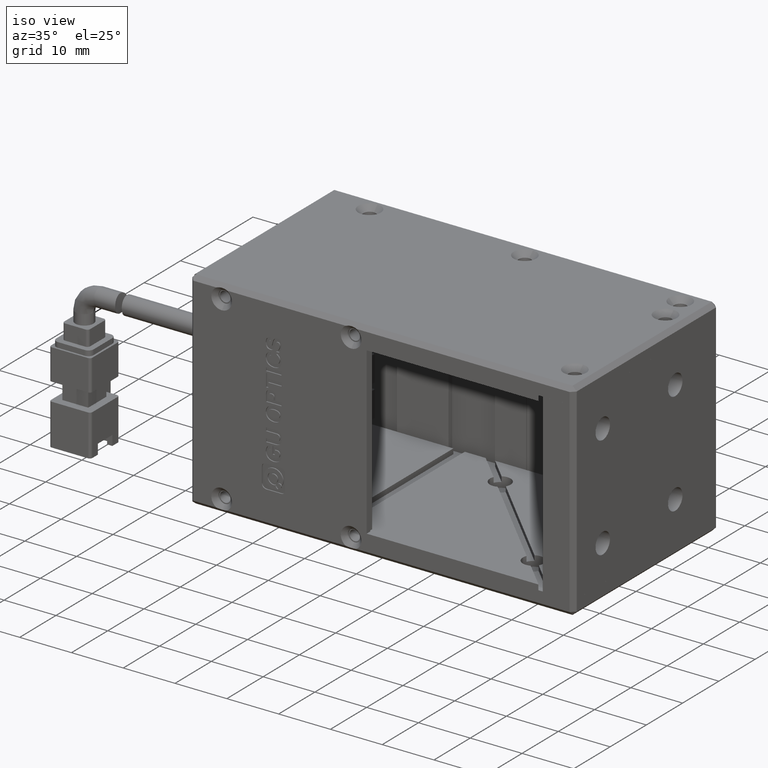
[diagram: clean part render]
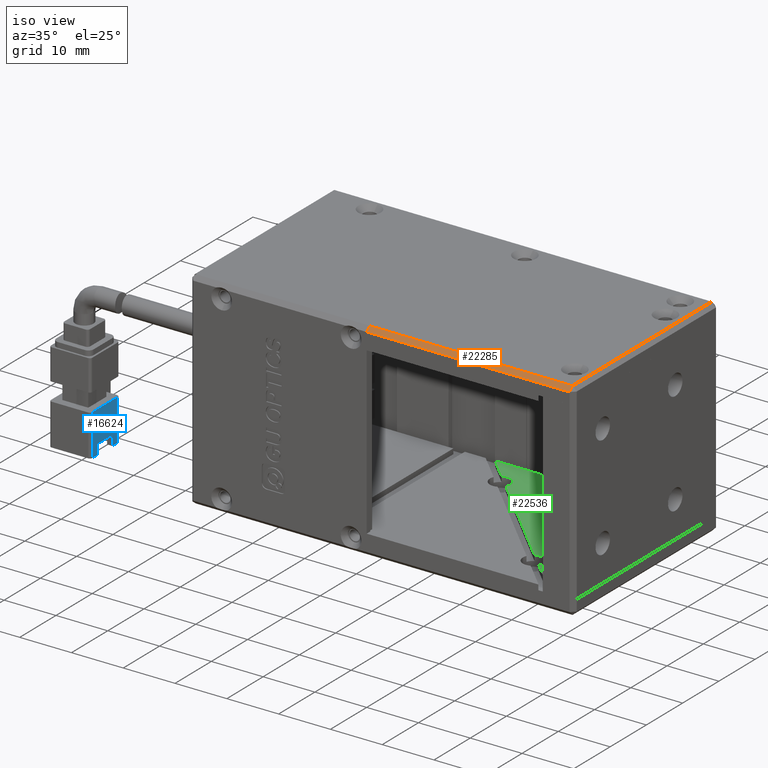
[diagram: same view with three faces highlighted in distinct colors, each labeled with its STEP entity id]
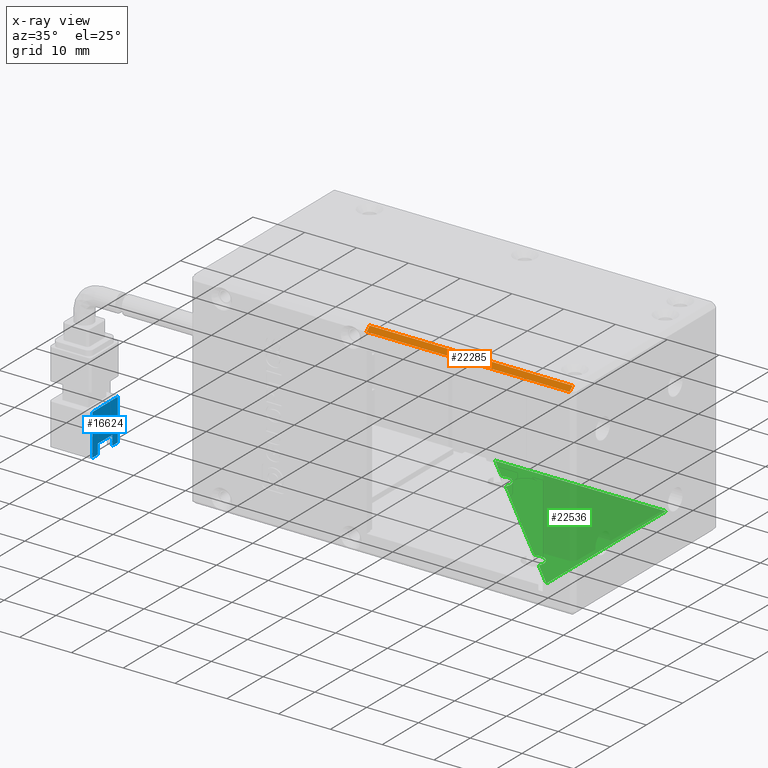
[diagram: x-ray of the same camera — body ghosted, the three highlighted faces saturated]
A machine part, iso view with three faces highlighted in distinct colors.
The next image is the same camera in x-ray (body ghosted, the three faces saturated) — at least one of them is partly hidden behind the body in this view.
Their STEP definitions:

[orange] entity #22285 — the highlighted planar face has unit normal (0, 0.7071, -0.7071).
#1655 = DIRECTION ( 'NONE',  ( 0.0000000000000000000, 0.7071067811865474600, 0.7071067811865474600 ) ) ;
#2727 = ORIENTED_EDGE ( 'NONE', *, *, #21520, .F. ) ;
#2840 = VERTEX_POINT ( 'NONE', #33654 ) ;
#3731 = DIRECTION ( 'NONE',  ( -0.0000000000000000000, -0.7071067811865474600, -0.7071067811865474600 ) ) ;
#4059 = DIRECTION ( 'NONE',  ( -1.000000000000000000, 0.0000000000000000000, -0.0000000000000000000 ) ) ;
#6095 = VECTOR ( 'NONE', #4059, 1000.000000000000000 ) ;
#7391 = LINE ( 'NONE', #14409, #14453 ) ;
#8823 = VECTOR ( 'NONE', #20894, 1000.000000000000000 ) ;
#9770 = DIRECTION ( 'NONE',  ( 0.0000000000000000000, -0.7071067811865477900, -0.7071067811865473500 ) ) ;
#13815 = LINE ( 'NONE', #25583, #27092 ) ;
#14409 = CARTESIAN_POINT ( 'NONE',  ( 28.96222020198800700, -6.018613977539940800, 40.00000000000955000 ) ) ;
#14453 = VECTOR ( 'NONE', #3731, 1000.000000000000100 ) ;
#15240 = EDGE_CURVE ( 'NONE', #27473, #29883, #20241, .T. ) ;
#15880 = LINE ( 'NONE', #26209, #8823 ) ;
#16785 = AXIS2_PLACEMENT_3D ( 'NONE', #33415, #17510, #1655 ) ;
#17184 = CARTESIAN_POINT ( 'NONE',  ( 28.96222020198797900, -6.818613977539942400, 39.20000000000954500 ) ) ;
#17510 = DIRECTION ( 'NONE',  ( 0.0000000000000000000, 0.7071067811865475700, -0.7071067811865475700 ) ) ;
#19950 = CARTESIAN_POINT ( 'NONE',  ( -41.23777979801202100, -6.818613977539942400, 39.20000000000954500 ) ) ;
#20241 = LINE ( 'NONE', #19950, #6095 ) ;
#20549 = ORIENTED_EDGE ( 'NONE', *, *, #15240, .F. ) ;
#20894 = DIRECTION ( 'NONE',  ( -1.000000000000000000, 0.0000000000000000000, -0.0000000000000000000 ) ) ;
#21520 = EDGE_CURVE ( 'NONE', #2840, #27473, #7391, .T. ) ;
#22285 = ADVANCED_FACE ( 'NONE', ( #25970 ), #33294, .F. ) ;
#23009 = EDGE_CURVE ( 'NONE', #32331, #29883, #13815, .T. ) ;
#25583 = CARTESIAN_POINT ( 'NONE',  ( -10.23777979801202800, -6.018613977539940800, 40.00000000000955000 ) ) ;
#25970 = FACE_OUTER_BOUND ( 'NONE', #27384, .T. ) ;
#26209 = CARTESIAN_POINT ( 'NONE',  ( -41.23777979801202100, -6.018613977539940800, 40.00000000000955000 ) ) ;
#27092 = VECTOR ( 'NONE', #9770, 999.9999999999998900 ) ;
#27384 = EDGE_LOOP ( 'NONE', ( #20549, #2727, #32709, #30404 ) ) ;
#27473 = VERTEX_POINT ( 'NONE', #17184 ) ;
#28203 = CARTESIAN_POINT ( 'NONE',  ( -10.23777979801202100, -6.018613977539940800, 40.00000000000955000 ) ) ;
#29883 = VERTEX_POINT ( 'NONE', #31966 ) ;
#30404 = ORIENTED_EDGE ( 'NONE', *, *, #23009, .T. ) ;
#31966 = CARTESIAN_POINT ( 'NONE',  ( -10.23777979801202100, -6.818613977539942400, 39.20000000000954500 ) ) ;
#32331 = VERTEX_POINT ( 'NONE', #28203 ) ;
#32336 = EDGE_CURVE ( 'NONE', #2840, #32331, #15880, .T. ) ;
#32709 = ORIENTED_EDGE ( 'NONE', *, *, #32336, .T. ) ;
#33294 = PLANE ( 'NONE',  #16785 ) ;
#33415 = CARTESIAN_POINT ( 'NONE',  ( -41.23777979801202100, -6.018613977539940800, 40.00000000000955000 ) ) ;
#33654 = CARTESIAN_POINT ( 'NONE',  ( 28.96222020198798200, -6.018613977539940800, 40.00000000000955000 ) ) ;

[blue] entity #16624 — the highlighted planar face has unit normal (-1, 0, -0).
#146 = EDGE_CURVE ( 'NONE', #29936, #538, #14685, .T. ) ;
#538 = VERTEX_POINT ( 'NONE', #1553 ) ;
#821 = CARTESIAN_POINT ( 'NONE',  ( -62.63284929583383600, -0.6186139775399288600, 11.50000000000958000 ) ) ;
#980 = VERTEX_POINT ( 'NONE', #7018 ) ;
#1146 = EDGE_CURVE ( 'NONE', #538, #24507, #33683, .T. ) ;
#1553 = CARTESIAN_POINT ( 'NONE',  ( -62.63284929583377900, -2.118613977539933300, 3.500000000009559900 ) ) ;
#2059 = DIRECTION ( 'NONE',  ( 1.665334536937736000E-016, -2.876031558254430600E-032, -1.000000000000000000 ) ) ;
#2361 = ORIENTED_EDGE ( 'NONE', *, *, #28013, .F. ) ;
#2841 = VECTOR ( 'NONE', #23331, 1000.000000000000000 ) ;
#3246 = CARTESIAN_POINT ( 'NONE',  ( -62.63284929583377900, -2.118613977539930200, 3.500000000009558100 ) ) ;
#6121 = CARTESIAN_POINT ( 'NONE',  ( -62.63284929583380700, -7.618613977539928000, 3.500000000009592800 ) ) ;
#7018 = CARTESIAN_POINT ( 'NONE',  ( -62.63284929583377900, -6.118613977539936000, 3.500000000009564800 ) ) ;
#7594 = EDGE_CURVE ( 'NONE', #13329, #980, #11013, .T. ) ;
#8351 = DIRECTION ( 'NONE',  ( 1.814986321941448300E-032, 1.000000000000000000, -1.089862896423739600E-016 ) ) ;
#8425 = VECTOR ( 'NONE', #32244, 1000.000000000000000 ) ;
#9055 = ORIENTED_EDGE ( 'NONE', *, *, #33540, .F. ) ;
#9559 = VERTEX_POINT ( 'NONE', #19560 ) ;
#9781 = DIRECTION ( 'NONE',  ( -1.000000000000000000, 1.726999287208057500E-016, -1.665334536937736000E-016 ) ) ;
#10628 = CARTESIAN_POINT ( 'NONE',  ( -62.63284929583380700, -0.6186139775399370800, 11.50000000000955900 ) ) ;
#11013 = LINE ( 'NONE', #20707, #25152 ) ;
#11501 = LINE ( 'NONE', #24221, #25654 ) ;
#11767 = VECTOR ( 'NONE', #27351, 1000.000000000000000 ) ;
#11965 = EDGE_CURVE ( 'NONE', #9559, #21158, #19676, .T. ) ;
#11995 = EDGE_CURVE ( 'NONE', #24507, #13329, #23398, .T. ) ;
#12317 = PLANE ( 'NONE',  #33456 ) ;
#13329 = VERTEX_POINT ( 'NONE', #14211 ) ;
#13447 = ORIENTED_EDGE ( 'NONE', *, *, #146, .F. ) ;
#13657 = CARTESIAN_POINT ( 'NONE',  ( -62.63284929583377900, -0.6186139775399288600, 3.500000000009558100 ) ) ;
#14211 = CARTESIAN_POINT ( 'NONE',  ( -62.63284929583377900, -6.118613977539930600, 5.418629980957303100 ) ) ;
#14527 = LINE ( 'NONE', #821, #28654 ) ;
#14685 = LINE ( 'NONE', #13657, #8425 ) ;
#14690 = ORIENTED_EDGE ( 'NONE', *, *, #17623, .T. ) ;
#15181 = ORIENTED_EDGE ( 'NONE', *, *, #7594, .F. ) ;
#15383 = CARTESIAN_POINT ( 'NONE',  ( -62.63284929583377900, -2.118613977539938600, 5.418629980957304900 ) ) ;
#15403 = FACE_OUTER_BOUND ( 'NONE', #16410, .T. ) ;
#16410 = EDGE_LOOP ( 'NONE', ( #31129, #13447, #9055, #2361, #24053, #14690, #15181, #18328 ) ) ;
#16624 = ADVANCED_FACE ( 'NONE', ( #15403 ), #12317, .F. ) ;
#16908 = DIRECTION ( 'NONE',  ( -1.726999287208057500E-016, -1.000000000000000000, 0.0000000000000000000 ) ) ;
#17623 = EDGE_CURVE ( 'NONE', #9559, #980, #11501, .T. ) ;
#18328 = ORIENTED_EDGE ( 'NONE', *, *, #11995, .F. ) ;
#19335 = DIRECTION ( 'NONE',  ( 1.814986321941448300E-032, 1.000000000000000000, -1.089862896423739600E-016 ) ) ;
#19560 = CARTESIAN_POINT ( 'NONE',  ( -62.63284929583379300, -7.618613977539928000, 3.500000000009579000 ) ) ;
#19676 = LINE ( 'NONE', #6121, #11767 ) ;
#20688 = CARTESIAN_POINT ( 'NONE',  ( -62.63284929583377900, -0.6186139775399461800, 3.500000000009558100 ) ) ;
#20707 = CARTESIAN_POINT ( 'NONE',  ( -62.63284929583377900, -6.118613977539930600, 3.500000000009558100 ) ) ;
#21158 = VERTEX_POINT ( 'NONE', #28140 ) ;
#21815 = DIRECTION ( 'NONE',  ( -1.665334536937736000E-016, 2.876031558254430600E-032, 1.000000000000000000 ) ) ;
#23170 = LINE ( 'NONE', #20688, #2841 ) ;
#23331 = DIRECTION ( 'NONE',  ( 1.665334536937736000E-016, -2.876031558254430600E-032, -1.000000000000000000 ) ) ;
#23398 = LINE ( 'NONE', #30109, #29628 ) ;
#24053 = ORIENTED_EDGE ( 'NONE', *, *, #11965, .F. ) ;
#24221 = CARTESIAN_POINT ( 'NONE',  ( -62.63284929583377900, -0.6186139775399461800, 3.500000000009566600 ) ) ;
#24269 = CARTESIAN_POINT ( 'NONE',  ( -62.63284929583377900, -0.6186139775399375200, 3.500000000009558100 ) ) ;
#24507 = VERTEX_POINT ( 'NONE', #15383 ) ;
#25152 = VECTOR ( 'NONE', #2059, 1000.000000000000000 ) ;
#25654 = VECTOR ( 'NONE', #8351, 1000.000000000000000 ) ;
#25701 = CARTESIAN_POINT ( 'NONE',  ( -62.63284929583377900, -0.6186139775399288600, 3.500000000009558100 ) ) ;
#27351 = DIRECTION ( 'NONE',  ( 1.110223024625157800E-016, 1.089862896423739600E-016, 1.000000000000000000 ) ) ;
#28013 = EDGE_CURVE ( 'NONE', #21158, #31225, #14527, .T. ) ;
#28140 = CARTESIAN_POINT ( 'NONE',  ( -62.63284929583382200, -7.618613977539927100, 11.50000000000957300 ) ) ;
#28393 = DIRECTION ( 'NONE',  ( -1.726999287208057500E-016, -1.000000000000000000, 0.0000000000000000000 ) ) ;
#28654 = VECTOR ( 'NONE', #19335, 1000.000000000000000 ) ;
#29628 = VECTOR ( 'NONE', #16908, 1000.000000000000000 ) ;
#29936 = VERTEX_POINT ( 'NONE', #24269 ) ;
#30109 = CARTESIAN_POINT ( 'NONE',  ( -62.63284929583377900, -0.6186139775399288600, 5.418629980957309300 ) ) ;
#31129 = ORIENTED_EDGE ( 'NONE', *, *, #1146, .F. ) ;
#31225 = VERTEX_POINT ( 'NONE', #10628 ) ;
#32244 = DIRECTION ( 'NONE',  ( -1.726999287208057500E-016, -1.000000000000000000, 0.0000000000000000000 ) ) ;
#32840 = VECTOR ( 'NONE', #21815, 1000.000000000000000 ) ;
#33456 = AXIS2_PLACEMENT_3D ( 'NONE', #25701, #9781, #28393 ) ;
#33540 = EDGE_CURVE ( 'NONE', #31225, #29936, #23170, .T. ) ;
#33683 = LINE ( 'NONE', #3246, #32840 ) ;

[green] entity #22536 — the highlighted planar face has unit normal (0, -0, 1).
#83 = VECTOR ( 'NONE', #11058, 1000.000000000000000 ) ;
#498 = LINE ( 'NONE', #18780, #14608 ) ;
#1804 = VERTEX_POINT ( 'NONE', #19299 ) ;
#1914 = ORIENTED_EDGE ( 'NONE', *, *, #25675, .T. ) ;
#2474 = VERTEX_POINT ( 'NONE', #15271 ) ;
#2495 = CARTESIAN_POINT ( 'NONE',  ( -2.352360032045100400, 20.29596625649325900, 4.000000000009549700 ) ) ;
#2869 = DIRECTION ( 'NONE',  ( 0.7071067811865458000, -0.7071067811865492400, -0.0000000000000000000 ) ) ;
#3856 = ORIENTED_EDGE ( 'NONE', *, *, #34142, .T. ) ;
#4052 = EDGE_CURVE ( 'NONE', #13342, #12216, #31855, .T. ) ;
#4656 = AXIS2_PLACEMENT_3D ( 'NONE', #5638, #24189, #8322 ) ;
#4857 = CARTESIAN_POINT ( 'NONE',  ( -4.100956225786454500, 21.26674499092930000, 4.000000000009549700 ) ) ;
#4915 = EDGE_CURVE ( 'NONE', #10063, #13342, #24219, .T. ) ;
#5638 = CARTESIAN_POINT ( 'NONE',  ( 17.11224720980995800, 0.05354155533287326800, 4.000000000009549700 ) ) ;
#6026 = CARTESIAN_POINT ( 'NONE',  ( -5.071734960222492800, 23.01534118467066700, 4.000000000009549700 ) ) ;
#6267 = LINE ( 'NONE', #8308, #83 ) ;
#6428 = CARTESIAN_POINT ( 'NONE',  ( 19.11224720980996100, 0.05354155533287326800, 4.000000000009549700 ) ) ;
#6976 = ORIENTED_EDGE ( 'NONE', *, *, #11833, .T. ) ;
#7131 = CARTESIAN_POINT ( 'NONE',  ( -2.352360032045100400, 20.29596625649325900, 4.000000000009549700 ) ) ;
#7538 = DIRECTION ( 'NONE',  ( 1.000000000000000000, 0.0000000000000000000, 0.0000000000000000000 ) ) ;
#7840 = DIRECTION ( 'NONE',  ( 0.7071067811865459100, -0.7071067811865491300, 0.0000000000000000000 ) ) ;
#8308 = CARTESIAN_POINT ( 'NONE',  ( 24.76222020198796900, -6.818613977539942400, 4.000000000009549700 ) ) ;
#8322 = DIRECTION ( 'NONE',  ( 1.000000000000000000, 0.0000000000000000000, 0.0000000000000000000 ) ) ;
#9116 = EDGE_LOOP ( 'NONE', ( #33765, #10145, #20142, #11814, #3856, #17697, #33806, #1914, #6976 ) ) ;
#9386 = EDGE_CURVE ( 'NONE', #26687, #23714, #498, .T. ) ;
#10052 = LINE ( 'NONE', #2495, #16268 ) ;
#10063 = VERTEX_POINT ( 'NONE', #20553 ) ;
#10145 = ORIENTED_EDGE ( 'NONE', *, *, #4915, .T. ) ;
#10978 = DIRECTION ( 'NONE',  ( 0.0000000000000000000, 0.0000000000000000000, -1.000000000000000000 ) ) ;
#11058 = DIRECTION ( 'NONE',  ( 0.7071067811865458000, -0.7071067811865492400, -0.0000000000000000000 ) ) ;
#11296 = CARTESIAN_POINT ( 'NONE',  ( -74.43575776610744300, 27.18138602246005300, 4.000000000009549700 ) ) ;
#11814 = ORIENTED_EDGE ( 'NONE', *, *, #14069, .T. ) ;
#11833 = EDGE_CURVE ( 'NONE', #2474, #19209, #13033, .T. ) ;
#11875 = VECTOR ( 'NONE', #33815, 1000.000000000000000 ) ;
#11945 = CARTESIAN_POINT ( 'NONE',  ( 17.11224720980995800, 0.05354155533287326800, 4.000000000009549700 ) ) ;
#12216 = VERTEX_POINT ( 'NONE', #20049 ) ;
#12611 = FACE_OUTER_BOUND ( 'NONE', #9116, .T. ) ;
#12685 = LINE ( 'NONE', #17909, #11875 ) ;
#13033 = CIRCLE ( 'NONE', #15564, 2.000000000000001800 ) ;
#13142 = CARTESIAN_POINT ( 'NONE',  ( 29.76222020198797200, 33.18138602246005300, 4.000000000009549700 ) ) ;
#13342 = VERTEX_POINT ( 'NONE', #6428 ) ;
#14069 = EDGE_CURVE ( 'NONE', #12216, #1804, #6267, .T. ) ;
#14148 = EDGE_CURVE ( 'NONE', #32678, #26687, #14183, .T. ) ;
#14183 = LINE ( 'NONE', #11296, #24936 ) ;
#14608 = VECTOR ( 'NONE', #2869, 1000.000000000000000 ) ;
#14674 = DIRECTION ( 'NONE',  ( 1.000000000000000000, 0.0000000000000000000, 0.0000000000000000000 ) ) ;
#15271 = CARTESIAN_POINT ( 'NONE',  ( -2.100956225786453100, 21.26674499092930000, 4.000000000009549700 ) ) ;
#15564 = AXIS2_PLACEMENT_3D ( 'NONE', #26884, #10978, #29561 ) ;
#15841 = DIRECTION ( 'NONE',  ( 1.000000000000000000, 0.0000000000000000000, -0.0000000000000000000 ) ) ;
#16268 = VECTOR ( 'NONE', #7840, 1000.000000000000100 ) ;
#17008 = CARTESIAN_POINT ( 'NONE',  ( 23.76222020198797900, 27.18138602246005300, 4.000000000009549700 ) ) ;
#17697 = ORIENTED_EDGE ( 'NONE', *, *, #14148, .T. ) ;
#17909 = CARTESIAN_POINT ( 'NONE',  ( 23.76222020198797600, 27.18138602246005300, 4.000000000009549700 ) ) ;
#18780 = CARTESIAN_POINT ( 'NONE',  ( 24.76222020198796900, -6.818613977539942400, 4.000000000009549700 ) ) ;
#18790 = EDGE_CURVE ( 'NONE', #19209, #10063, #10052, .T. ) ;
#19209 = VERTEX_POINT ( 'NONE', #7131 ) ;
#19299 = CARTESIAN_POINT ( 'NONE',  ( 23.76222020198797900, -5.818613977539944100, 4.000000000009549700 ) ) ;
#19671 = AXIS2_PLACEMENT_3D ( 'NONE', #13142, #31741, #15841 ) ;
#20049 = CARTESIAN_POINT ( 'NONE',  ( 18.86084340355128200, -0.9172371791032265500, 4.000000000009549700 ) ) ;
#20142 = ORIENTED_EDGE ( 'NONE', *, *, #4052, .T. ) ;
#20553 = CARTESIAN_POINT ( 'NONE',  ( 16.14146847537386600, 1.802137749074204300, 4.000000000009549700 ) ) ;
#21734 = AXIS2_PLACEMENT_3D ( 'NONE', #11945, #30517, #14674 ) ;
#22536 = ADVANCED_FACE ( 'NONE', ( #12611 ), #34330, .T. ) ;
#23400 = DIRECTION ( 'NONE',  ( 0.0000000000000000000, 0.0000000000000000000, -1.000000000000000000 ) ) ;
#23714 = VERTEX_POINT ( 'NONE', #6026 ) ;
#24189 = DIRECTION ( 'NONE',  ( 0.0000000000000000000, 0.0000000000000000000, -1.000000000000000000 ) ) ;
#24219 = CIRCLE ( 'NONE', #4656, 2.000000000000001800 ) ;
#24936 = VECTOR ( 'NONE', #32567, 1000.000000000000000 ) ;
#25675 = EDGE_CURVE ( 'NONE', #23714, #2474, #26937, .T. ) ;
#26621 = CARTESIAN_POINT ( 'NONE',  ( -9.237779798011880300, 27.18138602246006000, 4.000000000009549700 ) ) ;
#26687 = VERTEX_POINT ( 'NONE', #26621 ) ;
#26884 = CARTESIAN_POINT ( 'NONE',  ( -4.100956225786454500, 21.26674499092930000, 4.000000000009549700 ) ) ;
#26937 = CIRCLE ( 'NONE', #32518, 2.000000000000001800 ) ;
#29561 = DIRECTION ( 'NONE',  ( 1.000000000000000000, 0.0000000000000000000, 0.0000000000000000000 ) ) ;
#30517 = DIRECTION ( 'NONE',  ( 0.0000000000000000000, 0.0000000000000000000, -1.000000000000000000 ) ) ;
#31741 = DIRECTION ( 'NONE',  ( 0.0000000000000000000, -0.0000000000000000000, 1.000000000000000000 ) ) ;
#31855 = CIRCLE ( 'NONE', #21734, 2.000000000000001800 ) ;
#32518 = AXIS2_PLACEMENT_3D ( 'NONE', #4857, #23400, #7538 ) ;
#32567 = DIRECTION ( 'NONE',  ( -1.000000000000000000, -0.0000000000000000000, -0.0000000000000000000 ) ) ;
#32678 = VERTEX_POINT ( 'NONE', #17008 ) ;
#33765 = ORIENTED_EDGE ( 'NONE', *, *, #18790, .T. ) ;
#33806 = ORIENTED_EDGE ( 'NONE', *, *, #9386, .T. ) ;
#33815 = DIRECTION ( 'NONE',  ( -1.269124381133715800E-016, 1.000000000000000000, -0.0000000000000000000 ) ) ;
#34142 = EDGE_CURVE ( 'NONE', #1804, #32678, #12685, .T. ) ;
#34330 = PLANE ( 'NONE',  #19671 ) ;